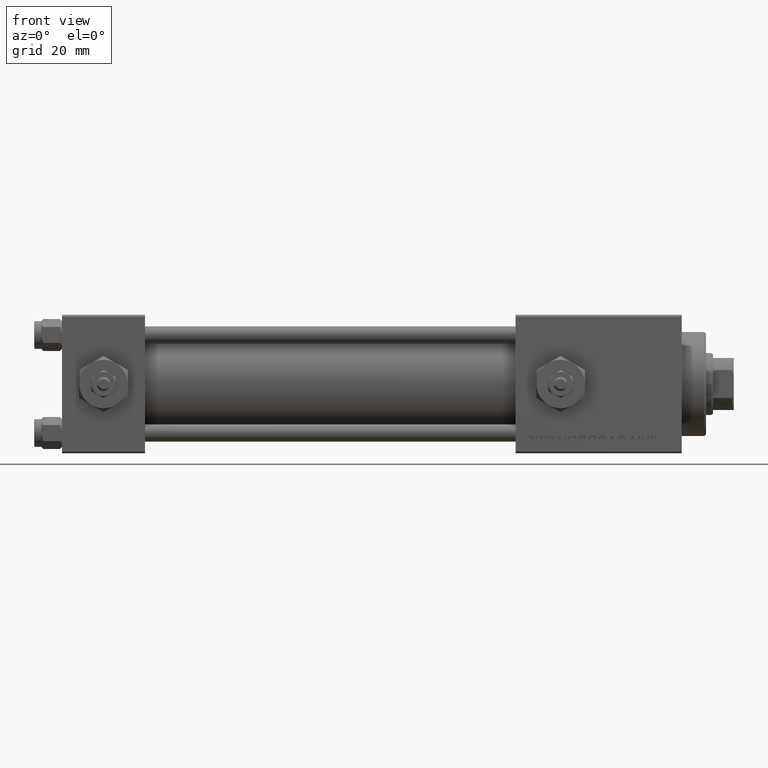
[diagram: clean part render]
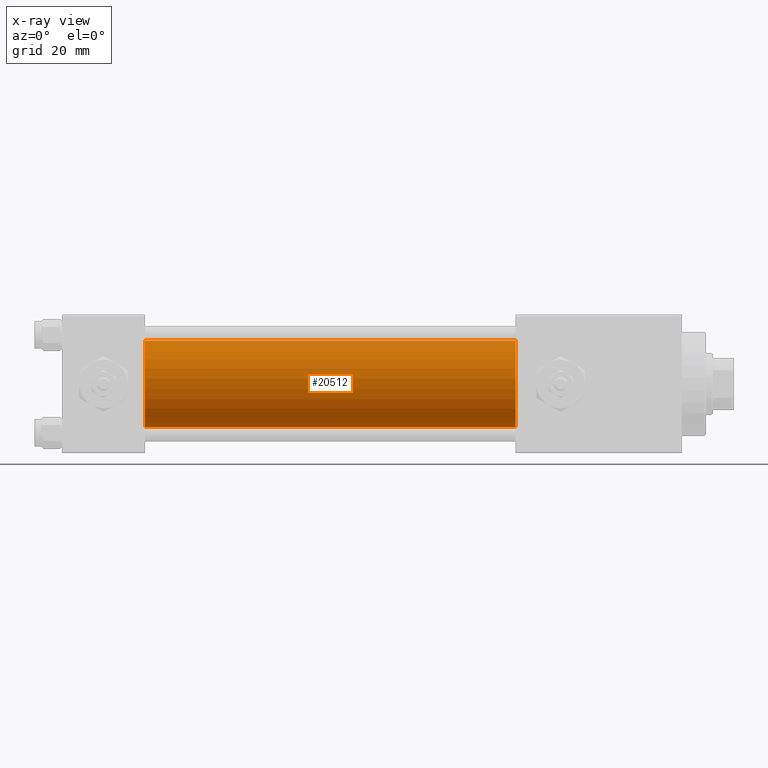
[diagram: x-ray — body ghosted, one internal face saturated and labeled with its STEP entity id]
A machine part, front view, then the same camera in x-ray: the body is ghosted and one INTERNAL B-rep face — a face not visible from any outside direction — is saturated and labeled: STEP entity #20512.
In plain terms, the highlighted cylindrical surface (partial cylindrical patch) has radius 12.5 mm, axis along (-1, -0, -0).
Its self-contained STEP definition (entity closure, byte-faithful):
#1151 = VERTEX_POINT ( 'NONE', #24932 ) ;
#1780 = VECTOR ( 'NONE', #32978, 1000.000000000000000 ) ;
#3154 = CARTESIAN_POINT ( 'NONE',  ( 131.0000000000000000, -2.602085213965210642E-15, 0.000000000000000000 ) ) ;
#4737 = AXIS2_PLACEMENT_3D ( 'NONE', #48672, #48926, #8803 ) ;
#6696 = EDGE_CURVE ( 'NONE', #7087, #29435, #22871, .T. ) ;
#6784 = LINE ( 'NONE', #30832, #25631 ) ;
#7087 = VERTEX_POINT ( 'NONE', #21575 ) ;
#7943 = EDGE_CURVE ( 'NONE', #18287, #7087, #25545, .T. ) ;
#8803 = DIRECTION ( 'NONE',  ( 0.000000000000000000, 0.000000000000000000, -1.000000000000000000 ) ) ;
#9177 = CARTESIAN_POINT ( 'NONE',  ( 131.0000000000000000, -2.602085213965210642E-15, 12.49999999999999645 ) ) ;
#10856 = DIRECTION ( 'NONE',  ( 0.000000000000000000, 0.000000000000000000, -1.000000000000000000 ) ) ;
#11122 = CARTESIAN_POINT ( 'NONE',  ( 24.00000000000000000, -2.602085213965210642E-15, 0.000000000000000000 ) ) ;
#13497 = CARTESIAN_POINT ( 'NONE',  ( 131.0000000000000000, -2.602085213965210642E-15, 12.49999999999999645 ) ) ;
#18287 = VERTEX_POINT ( 'NONE', #13497 ) ;
#18797 = DIRECTION ( 'NONE',  ( 1.000000000000000000, 0.000000000000000000, 0.000000000000000000 ) ) ;
#20512 = ADVANCED_FACE ( 'NONE', ( #46204 ), #46470, .F. ) ;
#21575 = CARTESIAN_POINT ( 'NONE',  ( 24.00000000000000000, -2.602085213965210642E-15, 12.49999999999999645 ) ) ;
#22871 = CIRCLE ( 'NONE', #28761, 12.49999999999999645 ) ;
#24932 = CARTESIAN_POINT ( 'NONE',  ( 131.0000000000000000, -1.071276715031019515E-15, -12.49999999999999645 ) ) ;
#25019 = AXIS2_PLACEMENT_3D ( 'NONE', #3154, #39632, #42787 ) ;
#25545 = LINE ( 'NONE', #9177, #1780 ) ;
#25631 = VECTOR ( 'NONE', #39039, 1000.000000000000000 ) ;
#26248 = EDGE_LOOP ( 'NONE', ( #26957, #29476, #45491, #49023 ) ) ;
#26957 = ORIENTED_EDGE ( 'NONE', *, *, #37149, .T. ) ;
#27540 = CIRCLE ( 'NONE', #4737, 12.49999999999999645 ) ;
#28761 = AXIS2_PLACEMENT_3D ( 'NONE', #11122, #18797, #10856 ) ;
#29435 = VERTEX_POINT ( 'NONE', #35470 ) ;
#29476 = ORIENTED_EDGE ( 'NONE', *, *, #30942, .T. ) ;
#30832 = CARTESIAN_POINT ( 'NONE',  ( 131.0000000000000000, -1.071276715031019515E-15, -12.49999999999999645 ) ) ;
#30942 = EDGE_CURVE ( 'NONE', #1151, #29435, #6784, .T. ) ;
#32978 = DIRECTION ( 'NONE',  ( -1.000000000000000000, -0.000000000000000000, -0.000000000000000000 ) ) ;
#35470 = CARTESIAN_POINT ( 'NONE',  ( 24.00000000000000000, -1.071276715031019515E-15, -12.49999999999999645 ) ) ;
#37149 = EDGE_CURVE ( 'NONE', #18287, #1151, #27540, .T. ) ;
#39039 = DIRECTION ( 'NONE',  ( -1.000000000000000000, -0.000000000000000000, -0.000000000000000000 ) ) ;
#39632 = DIRECTION ( 'NONE',  ( -1.000000000000000000, -0.000000000000000000, -0.000000000000000000 ) ) ;
#42787 = DIRECTION ( 'NONE',  ( 0.000000000000000000, 0.000000000000000000, 1.000000000000000000 ) ) ;
#45491 = ORIENTED_EDGE ( 'NONE', *, *, #6696, .F. ) ;
#46204 = FACE_OUTER_BOUND ( 'NONE', #26248, .T. ) ;
#46470 = CYLINDRICAL_SURFACE ( 'NONE', #25019, 12.49999999999999645 ) ;
#48672 = CARTESIAN_POINT ( 'NONE',  ( 131.0000000000000000, -2.602085213965210642E-15, 0.000000000000000000 ) ) ;
#48926 = DIRECTION ( 'NONE',  ( 1.000000000000000000, 0.000000000000000000, 0.000000000000000000 ) ) ;
#49023 = ORIENTED_EDGE ( 'NONE', *, *, #7943, .F. ) ;